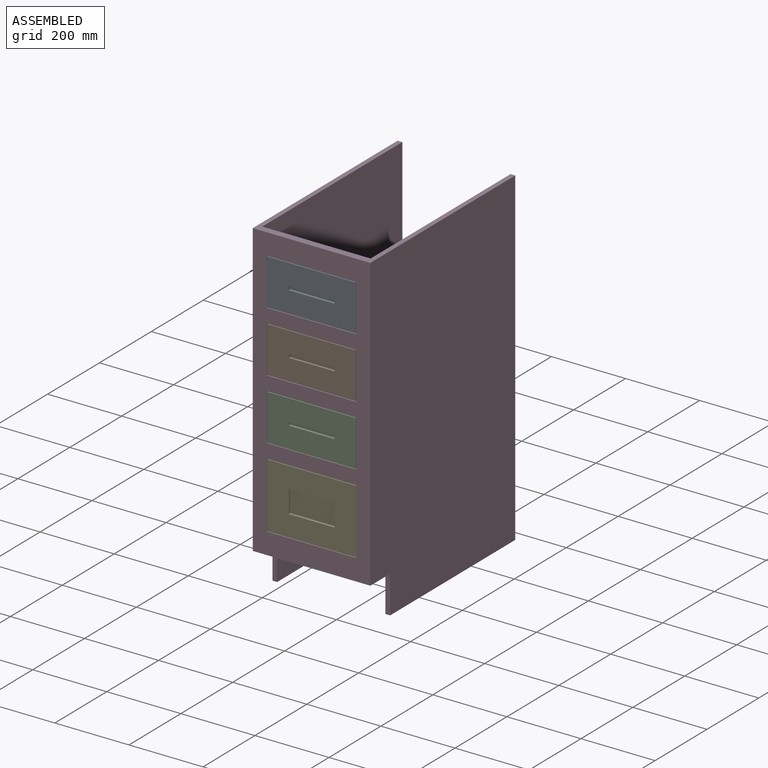
[diagram: assembled view]
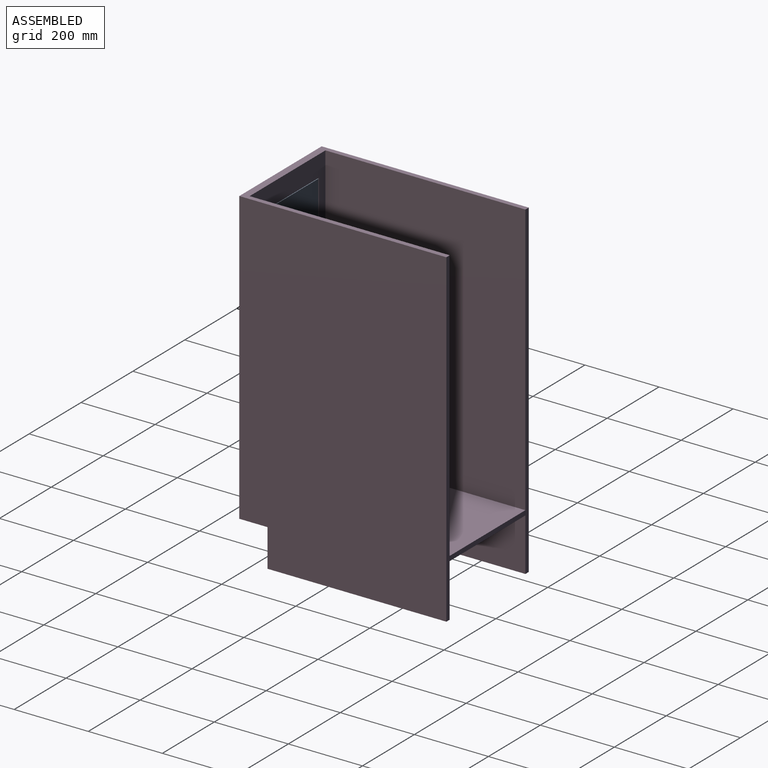
[diagram: assembled view, second angle]
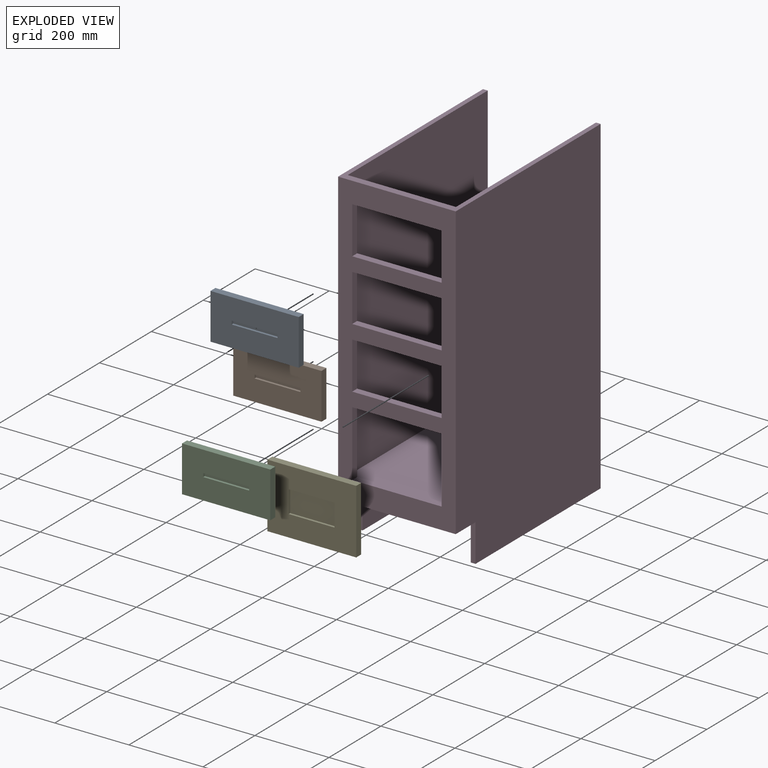
[diagram: exploded view]
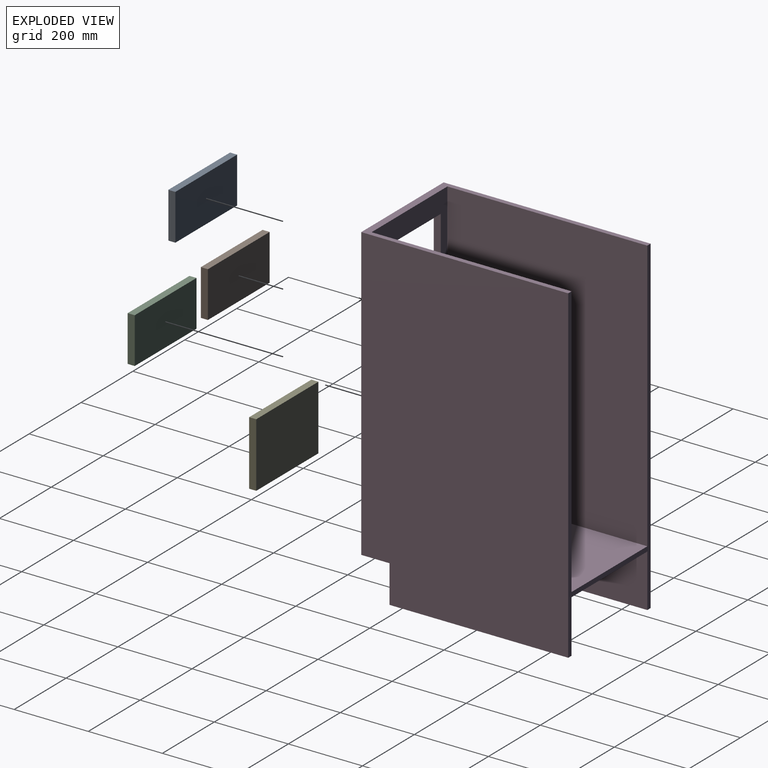
[diagram: exploded view, second angle]
ASSEMBLY  parts=5 mates=4
PART A: 11 faces, bbox 238.1x19.1x123.8 mm
  f0: plane 238.13x123.83mm, normal (0,-1,0), area 28306.4mm2, adj f1,f2,f3,f4,f6,f7,f8,f9
  f1: plane 238.13x19.05mm, normal (0,0,1), area 4536.3mm2, adj f0,f2,f4,f5
  f2: plane 123.83x19.05mm, normal (-1,0,0), area 2358.9mm2, adj f0,f1,f3,f5
  f3: plane 238.13x19.05mm, normal (0,0,-1), area 4536.3mm2, adj f0,f2,f4,f5
  f4: plane 123.83x19.05mm, normal (1,0,0), area 2358.9mm2, adj f0,f1,f3,f5
  f5: plane 238.13x123.83mm, normal (0,1,0), area 29485.8mm2, adj f1,f2,f3,f4
  f6: plane 123.83x6.35mm, normal (0,0,-1), area 786.3mm2, adj f0,f7,f9,f10
  f7: plane 9.53x6.35mm, normal (1,0,0), area 60.5mm2, adj f0,f6,f8,f10
  f8: plane 123.83x6.35mm, normal (0,0,1), area 786.3mm2, adj f0,f7,f9,f10
  f9: plane 9.53x6.35mm, normal (-1,0,0), area 60.5mm2, adj f0,f6,f8,f10
  f10: plane 123.83x9.53mm, normal (0,-1,0), area 1179.4mm2, adj f6,f7,f8,f9
PART B: same geometry as A
PART C: same geometry as A
PART D: 34 faces, bbox 317.5x558.8x889 mm
  f0: plane 889x558.8mm, normal (-1,0,0), area 489031.3mm2, adj f9,f10,f11,f25,f31,f32
  f1: plane 539.75x142.88mm, normal (-1,0,0), area 71310.3mm2, adj f3,f11,f25,f29,f30,f33
  f2: plane 539.75x142.88mm, normal (1,0,0), area 71310.3mm2, adj f3,f11,f25,f30,f31,f32
  f3: plane 292.1x41.28mm, normal (0,1,0), area 12056.4mm2, adj f1,f2,f11,f30
  f4: plane 733.43x292.1mm, normal (0,1,0), area 79395mm2, adj f5,f6,f7,f8,f10,f13,f14,f15
  f5: plane 241.3x19.05mm, normal (0,0,-1), area 4596.8mm2, adj f4,f9,f22,f23
  f6: plane 241.3x19.05mm, normal (0,0,-1), area 4596.8mm2, adj f4,f9,f19,f20
  f7: plane 241.3x19.05mm, normal (0,0,-1), area 4596.8mm2, adj f4,f9,f16,f17
  f8: plane 241.3x19.05mm, normal (0,0,-1), area 4596.8mm2, adj f4,f9,f13,f14
  f9: plane 787.4x317.5mm, normal (0,-1,0), area 115161.1mm2, adj f0,f5,f6,f7,f8,f10,f11,f12
  f10: plane 558.8x317.5mm, normal (0,0,1), area 19758mm2, adj f0,f4,f9,f12,f25,f26,f28
  f11: plane 317.5x76.2mm, normal (0,0,-1), area 7500mm2, adj f0,f1,f2,f3,f9,f12,f32,f33
  f12: plane 889x558.8mm, normal (1,0,0), area 489031.3mm2, adj f9,f10,f11,f25,f29,f33
  f13: plane 177.8x19.05mm, normal (1,0,0), area 3387.1mm2, adj f4,f8,f9,f15
  f14: plane 177.8x19.05mm, normal (-1,0,0), area 3387.1mm2, adj f4,f8,f9,f15
  f15: plane 241.3x19.05mm, normal (0,0,1), area 4596.8mm2, adj f4,f9,f13,f14
  f16: plane 127x19.05mm, normal (1,0,0), area 2419.4mm2, adj f4,f7,f9,f18
  f17: plane 127x19.05mm, normal (-1,0,0), area 2419.4mm2, adj f4,f7,f9,f18
  f18: plane 241.3x19.05mm, normal (0,0,1), area 4596.8mm2, adj f4,f9,f16,f17
  f19: plane 127x19.05mm, normal (1,0,0), area 2419.4mm2, adj f4,f6,f9,f21
  f20: plane 127x19.05mm, normal (-1,0,0), area 2419.4mm2, adj f4,f6,f9,f21
  f21: plane 241.3x19.05mm, normal (0,0,1), area 4596.8mm2, adj f4,f9,f19,f20
  f22: plane 127x19.05mm, normal (1,0,0), area 2419.4mm2, adj f4,f5,f9,f24
  f23: plane 127x19.05mm, normal (-1,0,0), area 2419.4mm2, adj f4,f5,f9,f24
  f24: plane 241.3x19.05mm, normal (0,0,1), area 4596.8mm2, adj f4,f9,f22,f23
  f25: plane 889x317.5mm, normal (0,1,0), area 26290.3mm2, adj f0,f1,f2,f10,f12,f26,f27,f28
  f26: plane 733.43x539.75mm, normal (1,0,0), area 395866.1mm2, adj f4,f10,f25,f27
  f27: plane 539.75x292.1mm, normal (0,0,1), area 157661mm2, adj f4,f25,f26,f28
  f28: plane 733.43x539.75mm, normal (-1,0,0), area 395866.1mm2, adj f4,f10,f25,f27
  f29: plane 482.6x12.7mm, normal (0,0,-1), area 6129mm2, adj f1,f12,f25,f33
  f30: plane 539.75x292.1mm, normal (0,0,-1), area 157661mm2, adj f1,f2,f3,f25
  f31: plane 482.6x12.7mm, normal (0,0,-1), area 6129mm2, adj f0,f2,f25,f32
  f32: plane 101.6x12.7mm, normal (0,-1,0), area 1290.3mm2, adj f0,f2,f11,f31
  f33: plane 101.6x12.7mm, normal (0,-1,0), area 1290.3mm2, adj f1,f11,f12,f29
PART E: 11 faces, bbox 239.7x19.1x174.6 mm
  f0: plane 239.71x174.63mm, normal (0,-1,0), area 34390.1mm2, adj f1,f2,f3,f4,f6,f7,f8,f9
  f1: plane 239.71x19.05mm, normal (0,0,1), area 4566.5mm2, adj f0,f2,f4,f5
  f2: plane 174.63x19.05mm, normal (-1,0,0), area 3326.6mm2, adj f0,f1,f3,f5
  f3: plane 239.71x19.05mm, normal (0,0,-1), area 4566.5mm2, adj f0,f2,f4,f5
  f4: plane 174.63x19.05mm, normal (1,0,0), area 3326.6mm2, adj f0,f1,f3,f5
  f5: plane 239.71x174.63mm, normal (0,1,0), area 41859.8mm2, adj f1,f2,f3,f4
  f6: plane 123.83x6.35mm, normal (0,0,-1), area 786.3mm2, adj f0,f7,f9,f10
  f7: plane 60.33x6.35mm, normal (1,0,0), area 383.1mm2, adj f0,f6,f8,f10
  f8: plane 123.83x6.35mm, normal (0,0,1), area 786.3mm2, adj f0,f7,f9,f10
  f9: plane 60.33x6.35mm, normal (-1,0,0), area 383.1mm2, adj f0,f6,f8,f10
  f10: plane 123.83x60.33mm, normal (0,-1,0), area 7469.7mm2, adj f6,f7,f8,f9
PLACE A t=(-2324.1,539.75,0)mm
PLACE B t=(-2324.1,539.75,-165.1)mm
PLACE C t=(-2324.1,539.75,-330.2)mm
PLACE D t=(-2324.1,539.75,0)mm fixed
PLACE E t=(-2324.1,539.75,0)mm
MATE fastened D.f9 <-> B.f0  axis (0,-1,0) through (25.4,-19.05,666.75)mm
MATE fastened D.f9 <-> C.f0  axis (0,-1,0) through (25.4,-19.05,501.65)mm
MATE fastened D.f9 <-> A.f0  axis (0,-1,0) through (25.4,-19.05,831.85)mm
MATE fastened D.f9 <-> E.f0  axis (0,-1,0) through (25.4,-19.05,336.55)mm
